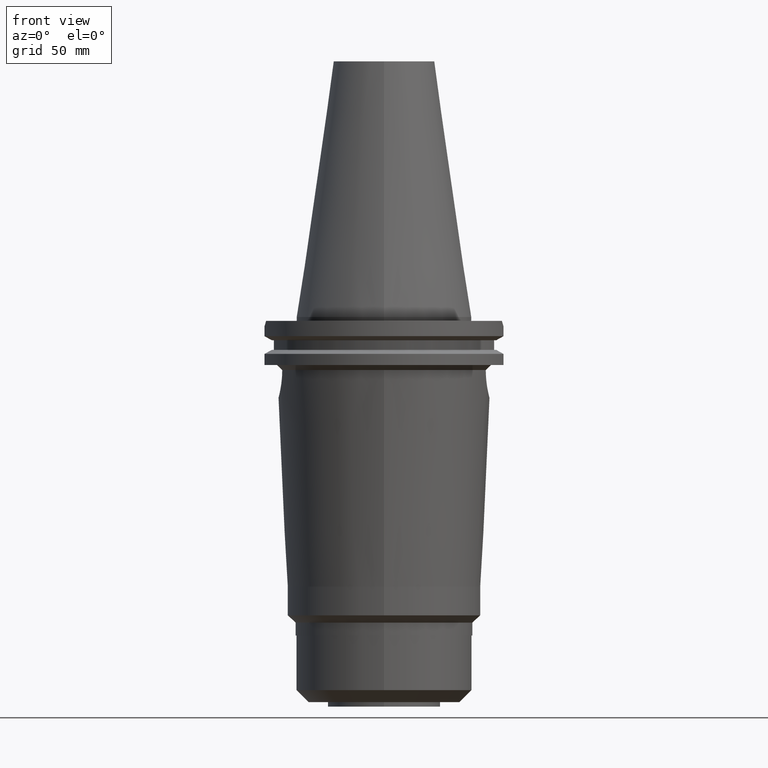
[diagram: clean part render]
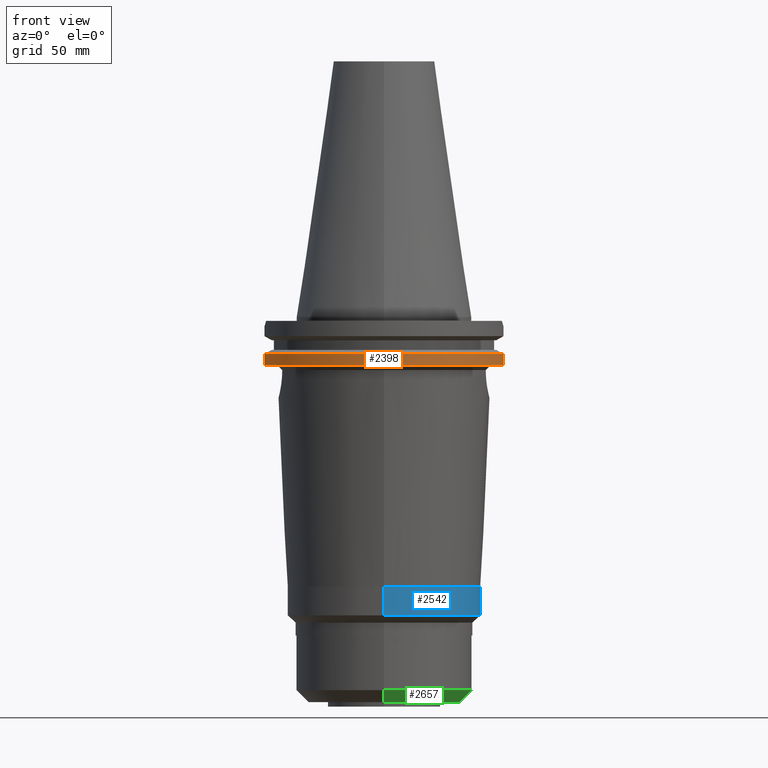
[diagram: same view with three faces highlighted in distinct colors, each labeled with its STEP entity id]
A machine part, front view with three faces highlighted in distinct colors.
Their STEP definitions:

[orange] entity #2398 — the highlighted cylindrical surface (partial cylindrical patch) has radius 49.2125 mm, axis along (0, 0, -1).
#860=CARTESIAN_POINT('',(0.E0,2.625887666732E-14,-1.905E1));
#861=DIRECTION('',(0.E0,0.E0,1.E0));
#862=DIRECTION('',(-9.647287063661E-1,-2.632461264923E-1,0.E0));
#863=AXIS2_PLACEMENT_3D('',#860,#861,#862);
#868=CARTESIAN_POINT('',(0.E0,2.625887666732E-14,-1.905E1));
#869=DIRECTION('',(0.E0,0.E0,1.E0));
#870=DIRECTION('',(0.E0,-1.E0,0.E0));
#871=AXIS2_PLACEMENT_3D('',#868,#869,#870);
#876=DIRECTION('',(-1.228324721565E-13,4.808244798230E-14,-1.E0));
#877=VECTOR('',#876,4.396333230921E0);
#878=CARTESIAN_POINT('',(4.747671146204E1,-1.2955E1,-1.465366676908E1));
#879=LINE('',#878,#877);
#883=DIRECTION('',(-1.341459893288E-13,-4.727433961285E-14,1.E0));
#884=VECTOR('',#883,4.396333230921E0);
#885=CARTESIAN_POINT('',(-4.747671146204E1,-1.2955E1,-1.905E1));
#886=LINE('',#885,#884);
#900=CARTESIAN_POINT('',(0.E0,1.055026073065E-14,-1.465366676908E1));
#901=DIRECTION('',(0.E0,0.E0,-1.E0));
#902=DIRECTION('',(9.647287063661E-1,-2.632461264923E-1,0.E0));
#903=AXIS2_PLACEMENT_3D('',#900,#901,#902);
#908=CARTESIAN_POINT('',(0.E0,1.055026073065E-14,-1.465366676908E1));
#909=DIRECTION('',(0.E0,0.E0,-1.E0));
#910=DIRECTION('',(0.E0,-1.E0,0.E0));
#911=AXIS2_PLACEMENT_3D('',#908,#909,#910);
#916=CARTESIAN_POINT('',(-4.747671146204E1,-1.2955E1,-1.465366676908E1));
#1650=CARTESIAN_POINT('',(4.747671146204E1,-1.2955E1,-1.905E1));
#1651=VERTEX_POINT('',#1650);
#1652=CARTESIAN_POINT('',(4.747671146204E1,-1.2955E1,-1.465366676908E1));
#1653=VERTEX_POINT('',#1652);
#1668=CARTESIAN_POINT('',(-4.747671146204E1,-1.2955E1,-1.905E1));
#1669=VERTEX_POINT('',#1668);
#1670=CARTESIAN_POINT('',(0.E0,-4.92125E1,-1.905E1));
#1671=VERTEX_POINT('',#1670);
#1691=VERTEX_POINT('',#916);
#1772=CARTESIAN_POINT('',(0.E0,-4.92125E1,-1.465366676908E1));
#1773=VERTEX_POINT('',#1772);
#2383=CARTESIAN_POINT('',(0.E0,2.625887666732E-14,1.1442E2));
#2384=DIRECTION('',(0.E0,0.E0,-1.E0));
#2385=DIRECTION('',(0.E0,-1.E0,0.E0));
#2386=AXIS2_PLACEMENT_3D('',#2383,#2384,#2385);
#2387=CYLINDRICAL_SURFACE('',#2386,4.92125E1);
#2388=ORIENTED_EDGE('',*,*,#2302,.T.);
#2389=ORIENTED_EDGE('',*,*,#2378,.F.);
#2390=ORIENTED_EDGE('',*,*,#2376,.F.);
#2391=ORIENTED_EDGE('',*,*,#2362,.T.);
#2393=ORIENTED_EDGE('',*,*,#2392,.F.);
#2395=ORIENTED_EDGE('',*,*,#2394,.F.);
#2396=EDGE_LOOP('',(#2388,#2389,#2390,#2391,#2393,#2395));
#2397=FACE_OUTER_BOUND('',#2396,.F.);
#864=CIRCLE('',#863,4.92125E1);
#872=CIRCLE('',#871,4.92125E1);
#904=CIRCLE('',#903,4.92125E1);
#912=CIRCLE('',#911,4.92125E1);
#2302=EDGE_CURVE('',#1653,#1651,#879,.T.);
#2362=EDGE_CURVE('',#1669,#1691,#886,.T.);
#2376=EDGE_CURVE('',#1669,#1671,#864,.T.);
#2378=EDGE_CURVE('',#1671,#1651,#872,.T.);
#2392=EDGE_CURVE('',#1773,#1691,#912,.T.);
#2394=EDGE_CURVE('',#1653,#1773,#904,.T.);
#2398=ADVANCED_FACE('',(#2397),#2387,.T.);

[blue] entity #2542 — the highlighted cylindrical surface (partial cylindrical patch) has radius 38.5 mm, axis along (0, 0, -1).
#358=CARTESIAN_POINT('',(0.E0,0.E0,-1.071E2));
#359=DIRECTION('',(0.E0,0.E0,-1.E0));
#360=DIRECTION('',(0.E0,1.E0,0.E0));
#361=AXIS2_PLACEMENT_3D('',#358,#359,#360);
#1084=DIRECTION('',(0.E0,-3.103949845687E-13,-1.E0));
#1085=VECTOR('',#1084,1.140000000001E1);
#1086=CARTESIAN_POINT('',(0.E0,-3.85E1,-1.071E2));
#1087=LINE('',#1086,#1085);
#1091=DIRECTION('',(0.E0,3.103949845687E-13,-1.E0));
#1092=VECTOR('',#1091,1.140000000001E1);
#1093=CARTESIAN_POINT('',(0.E0,3.85E1,-1.071E2));
#1094=LINE('',#1093,#1092);
#1113=CARTESIAN_POINT('',(0.E0,0.E0,-1.185E2));
#1114=DIRECTION('',(0.E0,0.E0,1.E0));
#1115=DIRECTION('',(0.E0,-1.E0,0.E0));
#1116=AXIS2_PLACEMENT_3D('',#1113,#1114,#1115);
#1616=CARTESIAN_POINT('',(0.E0,3.850000000001E1,-1.185E2));
#1617=VERTEX_POINT('',#1616);
#1618=CARTESIAN_POINT('',(0.E0,-3.850000000001E1,-1.185E2));
#1619=VERTEX_POINT('',#1618);
#1620=CARTESIAN_POINT('',(0.E0,3.85E1,-1.071E2));
#1621=VERTEX_POINT('',#1620);
#1622=CARTESIAN_POINT('',(0.E0,-3.85E1,-1.071E2));
#1623=VERTEX_POINT('',#1622);
#2530=CARTESIAN_POINT('',(0.E0,2.625887666732E-14,1.1442E2));
#2531=DIRECTION('',(0.E0,0.E0,-1.E0));
#2532=DIRECTION('',(0.E0,-1.E0,0.E0));
#2533=AXIS2_PLACEMENT_3D('',#2530,#2531,#2532);
#2534=CYLINDRICAL_SURFACE('',#2533,3.85E1);
#2535=ORIENTED_EDGE('',*,*,#2520,.T.);
#2537=ORIENTED_EDGE('',*,*,#2536,.F.);
#2538=ORIENTED_EDGE('',*,*,#2523,.F.);
#2539=ORIENTED_EDGE('',*,*,#2027,.F.);
#2540=EDGE_LOOP('',(#2535,#2537,#2538,#2539));
#2541=FACE_OUTER_BOUND('',#2540,.F.);
#362=CIRCLE('',#361,3.85E1);
#1117=CIRCLE('',#1116,3.850000000001E1);
#2027=EDGE_CURVE('',#1621,#1623,#362,.T.);
#2520=EDGE_CURVE('',#1621,#1617,#1094,.T.);
#2523=EDGE_CURVE('',#1623,#1619,#1087,.T.);
#2536=EDGE_CURVE('',#1619,#1617,#1117,.T.);
#2542=ADVANCED_FACE('',(#2541),#2534,.T.);

[green] entity #2657 — the highlighted conical surface has half-angle 45 deg.
#1204=DIRECTION('',(0.E0,-7.071067811866E-1,-7.071067811865E-1));
#1205=VECTOR('',#1204,6.788225099391E0);
#1206=CARTESIAN_POINT('',(0.E0,3.5E1,-1.482E2));
#1207=LINE('',#1206,#1205);
#1211=CARTESIAN_POINT('',(0.E0,0.E0,-1.482E2));
#1212=DIRECTION('',(0.E0,0.E0,1.E0));
#1213=DIRECTION('',(0.E0,-1.E0,0.E0));
#1214=AXIS2_PLACEMENT_3D('',#1211,#1212,#1213);
#1227=DIRECTION('',(0.E0,7.071067811865E-1,-7.071067811865E-1));
#1228=VECTOR('',#1227,6.788225099391E0);
#1229=CARTESIAN_POINT('',(0.E0,-3.5E1,-1.482E2));
#1230=LINE('',#1229,#1228);
#1234=CARTESIAN_POINT('',(0.E0,0.E0,-1.53E2));
#1235=DIRECTION('',(0.E0,0.E0,1.E0));
#1236=DIRECTION('',(0.E0,-1.E0,0.E0));
#1237=AXIS2_PLACEMENT_3D('',#1234,#1235,#1236);
#1596=CARTESIAN_POINT('',(0.E0,-3.02E1,-1.53E2));
#1597=CARTESIAN_POINT('',(0.E0,3.02E1,-1.53E2));
#1598=VERTEX_POINT('',#1596);
#1599=VERTEX_POINT('',#1597);
#1600=CARTESIAN_POINT('',(0.E0,3.5E1,-1.482E2));
#1601=VERTEX_POINT('',#1600);
#1602=CARTESIAN_POINT('',(0.E0,-3.5E1,-1.482E2));
#1603=VERTEX_POINT('',#1602);
#2643=CARTESIAN_POINT('',(0.E0,0.E0,-1.506E2));
#2644=DIRECTION('',(0.E0,0.E0,1.E0));
#2645=DIRECTION('',(0.E0,1.E0,0.E0));
#2646=AXIS2_PLACEMENT_3D('',#2643,#2644,#2645);
#2647=CONICAL_SURFACE('',#2646,3.26E1,4.5E1);
#2649=ORIENTED_EDGE('',*,*,#2648,.T.);
#2651=ORIENTED_EDGE('',*,*,#2650,.F.);
#2653=ORIENTED_EDGE('',*,*,#2652,.F.);
#2654=ORIENTED_EDGE('',*,*,#2636,.T.);
#2655=EDGE_LOOP('',(#2649,#2651,#2653,#2654));
#2656=FACE_OUTER_BOUND('',#2655,.F.);
#1215=CIRCLE('',#1214,3.5E1);
#1238=CIRCLE('',#1237,3.02E1);
#2636=EDGE_CURVE('',#1603,#1601,#1215,.T.);
#2648=EDGE_CURVE('',#1601,#1599,#1207,.T.);
#2650=EDGE_CURVE('',#1598,#1599,#1238,.T.);
#2652=EDGE_CURVE('',#1603,#1598,#1230,.T.);
#2657=ADVANCED_FACE('',(#2656),#2647,.T.);